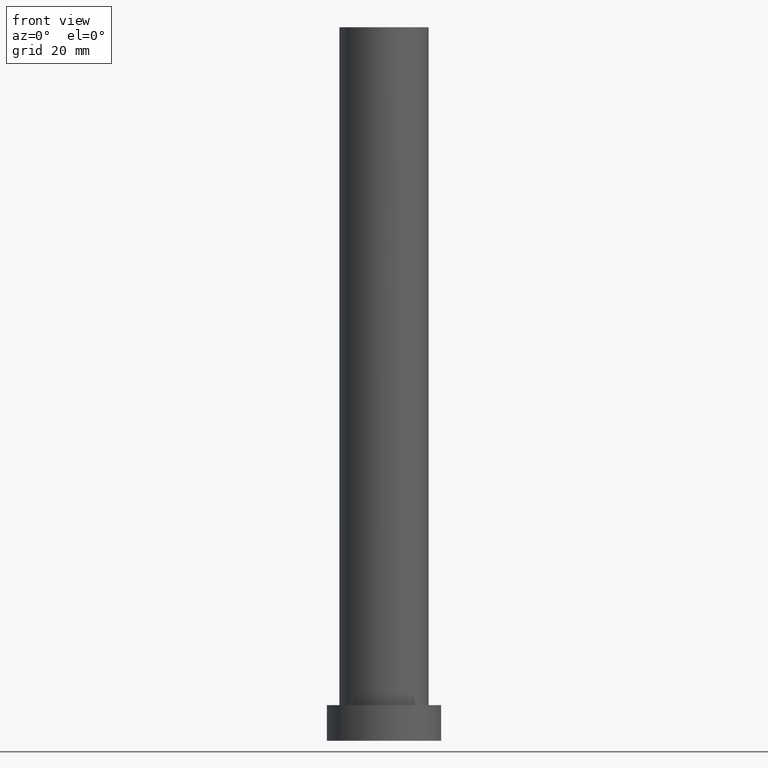
[diagram: clean part render]
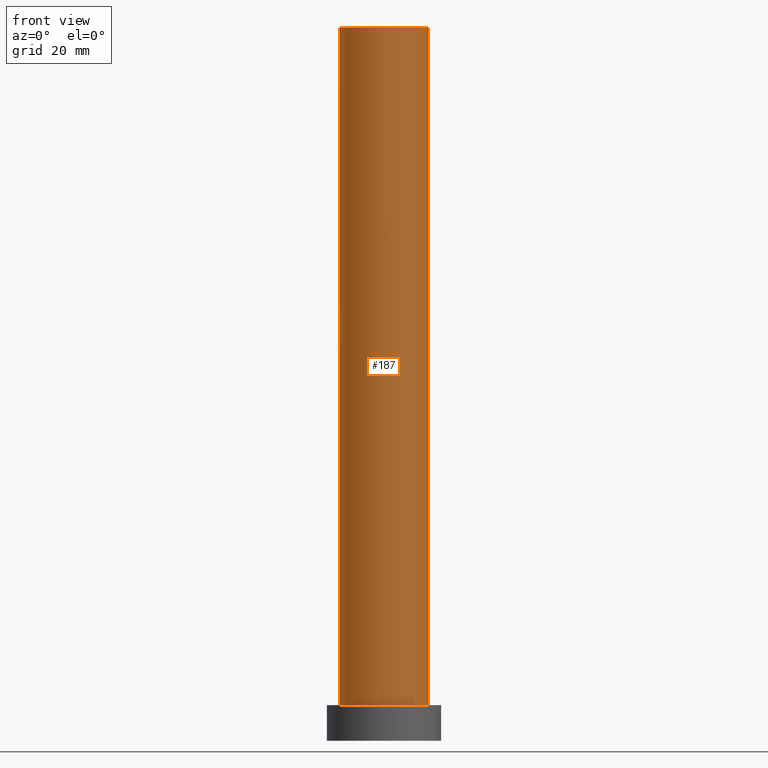
[diagram: same view with one face highlighted and labeled with its STEP entity id]
A machine part, front view. The second image highlights one B-rep face of the part: STEP entity #187.
In plain terms, the highlighted cylindrical surface (partial cylindrical patch) has radius 12.5 mm, axis along (-0, -0, -1).
Its self-contained STEP definition (entity closure, byte-faithful):
#6 = ORIENTED_EDGE ( 'NONE', *, *, #17, .T. ) ;
#11 = CARTESIAN_POINT ( 'NONE',  ( 12.50000000000000000, 1.530808498934191521E-15, 200.0000000000000000 ) ) ;
#17 = EDGE_CURVE ( 'NONE', #64, #164, #74, .T. ) ;
#24 = FACE_OUTER_BOUND ( 'NONE', #27, .T. ) ;
#27 = EDGE_LOOP ( 'NONE', ( #179, #35, #6, #107 ) ) ;
#35 = ORIENTED_EDGE ( 'NONE', *, *, #142, .F. ) ;
#45 = DIRECTION ( 'NONE',  ( -0.000000000000000000, -0.000000000000000000, -1.000000000000000000 ) ) ;
#52 = CARTESIAN_POINT ( 'NONE',  ( 0.000000000000000000, 0.000000000000000000, 200.0000000000000000 ) ) ;
#61 = CARTESIAN_POINT ( 'NONE',  ( 0.000000000000000000, 0.000000000000000000, 10.00000000000000000 ) ) ;
#64 = VERTEX_POINT ( 'NONE', #238 ) ;
#66 = AXIS2_PLACEMENT_3D ( 'NONE', #195, #204, #168 ) ;
#74 = LINE ( 'NONE', #156, #81 ) ;
#81 = VECTOR ( 'NONE', #45, 1000.000000000000000 ) ;
#83 = EDGE_CURVE ( 'NONE', #164, #145, #105, .T. ) ;
#105 = CIRCLE ( 'NONE', #240, 12.50000000000000000 ) ;
#107 = ORIENTED_EDGE ( 'NONE', *, *, #83, .T. ) ;
#109 = EDGE_CURVE ( 'NONE', #123, #145, #245, .T. ) ;
#116 = CARTESIAN_POINT ( 'NONE',  ( -12.50000000000000000, 0.000000000000000000, 10.00000000000000000 ) ) ;
#122 = AXIS2_PLACEMENT_3D ( 'NONE', #52, #125, #160 ) ;
#123 = VERTEX_POINT ( 'NONE', #11 ) ;
#125 = DIRECTION ( 'NONE',  ( 0.000000000000000000, 0.000000000000000000, 1.000000000000000000 ) ) ;
#131 = DIRECTION ( 'NONE',  ( 0.000000000000000000, 0.000000000000000000, 1.000000000000000000 ) ) ;
#142 = EDGE_CURVE ( 'NONE', #64, #123, #235, .T. ) ;
#145 = VERTEX_POINT ( 'NONE', #209 ) ;
#156 = CARTESIAN_POINT ( 'NONE',  ( -12.50000000000000000, 0.000000000000000000, 200.0000000000000000 ) ) ;
#160 = DIRECTION ( 'NONE',  ( 1.000000000000000000, 0.000000000000000000, 0.000000000000000000 ) ) ;
#164 = VERTEX_POINT ( 'NONE', #116 ) ;
#166 = VECTOR ( 'NONE', #229, 1000.000000000000000 ) ;
#168 = DIRECTION ( 'NONE',  ( -1.000000000000000000, 0.000000000000000000, 0.000000000000000000 ) ) ;
#169 = DIRECTION ( 'NONE',  ( 1.000000000000000000, 0.000000000000000000, 0.000000000000000000 ) ) ;
#176 = CYLINDRICAL_SURFACE ( 'NONE', #66, 12.50000000000000000 ) ;
#179 = ORIENTED_EDGE ( 'NONE', *, *, #109, .F. ) ;
#187 = ADVANCED_FACE ( 'NONE', ( #24 ), #176, .T. ) ;
#195 = CARTESIAN_POINT ( 'NONE',  ( 0.000000000000000000, 0.000000000000000000, 200.0000000000000000 ) ) ;
#198 = CARTESIAN_POINT ( 'NONE',  ( 12.50000000000000000, 1.530808498934191521E-15, 200.0000000000000000 ) ) ;
#204 = DIRECTION ( 'NONE',  ( -0.000000000000000000, -0.000000000000000000, -1.000000000000000000 ) ) ;
#209 = CARTESIAN_POINT ( 'NONE',  ( 12.50000000000000000, 1.530808498934191521E-15, 10.00000000000000000 ) ) ;
#229 = DIRECTION ( 'NONE',  ( -0.000000000000000000, -0.000000000000000000, -1.000000000000000000 ) ) ;
#235 = CIRCLE ( 'NONE', #122, 12.50000000000000000 ) ;
#238 = CARTESIAN_POINT ( 'NONE',  ( -12.50000000000000000, 0.000000000000000000, 200.0000000000000000 ) ) ;
#240 = AXIS2_PLACEMENT_3D ( 'NONE', #61, #131, #169 ) ;
#245 = LINE ( 'NONE', #198, #166 ) ;